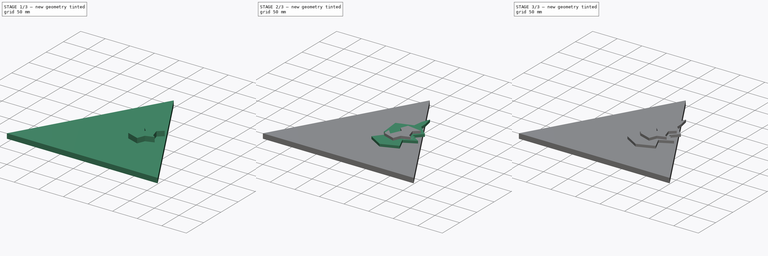
[diagram: build sequence overview — one tinted view per stage of 3, left to right]
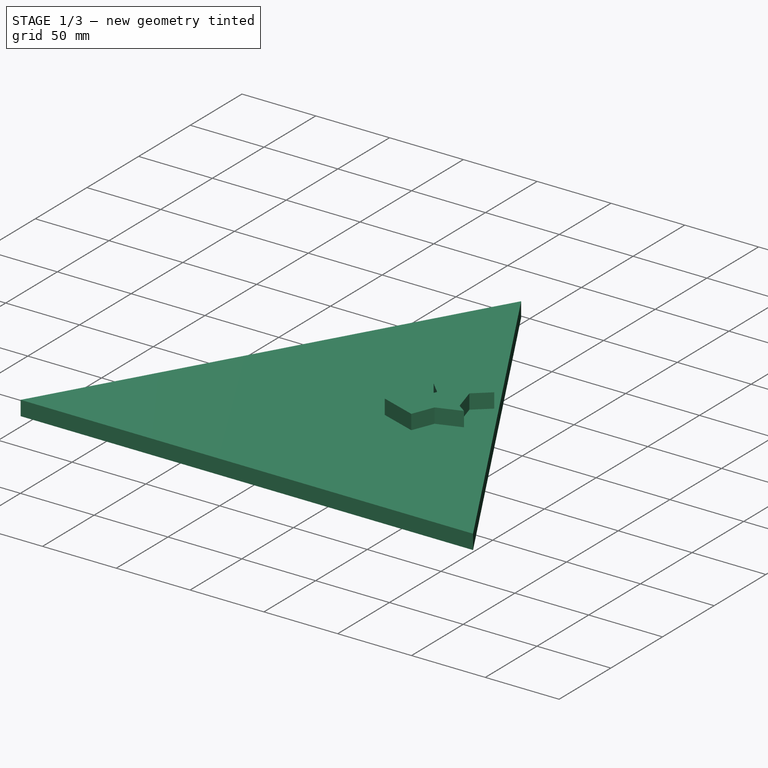
[diagram: stage 1 of 3 — iso view after this stage's code; geometry added in this stage tinted green]
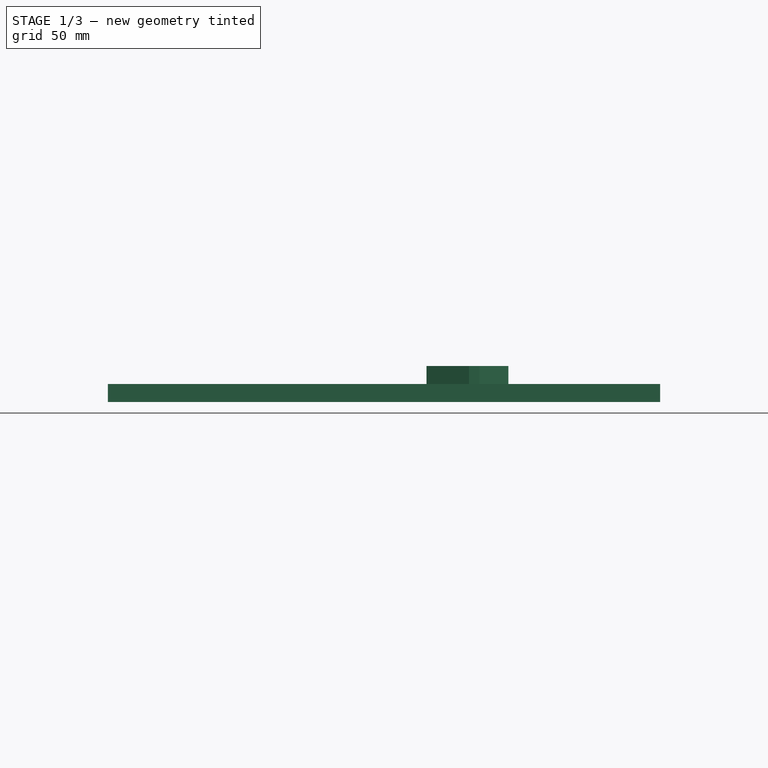
[diagram: stage 1 of 3 — front view after this stage's code; geometry added in this stage tinted green]
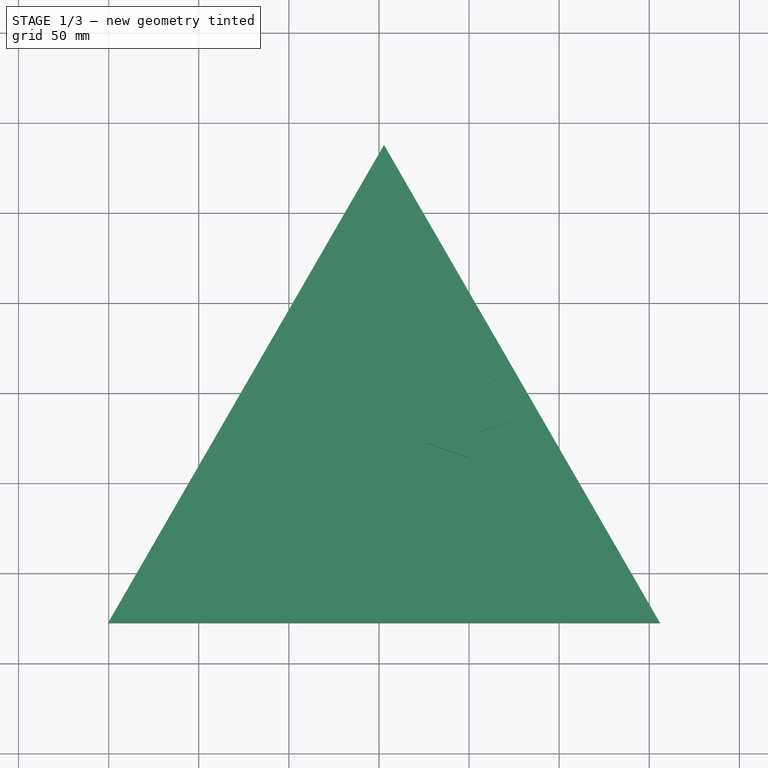
[diagram: stage 1 of 3 — top view after this stage's code; geometry added in this stage tinted green]
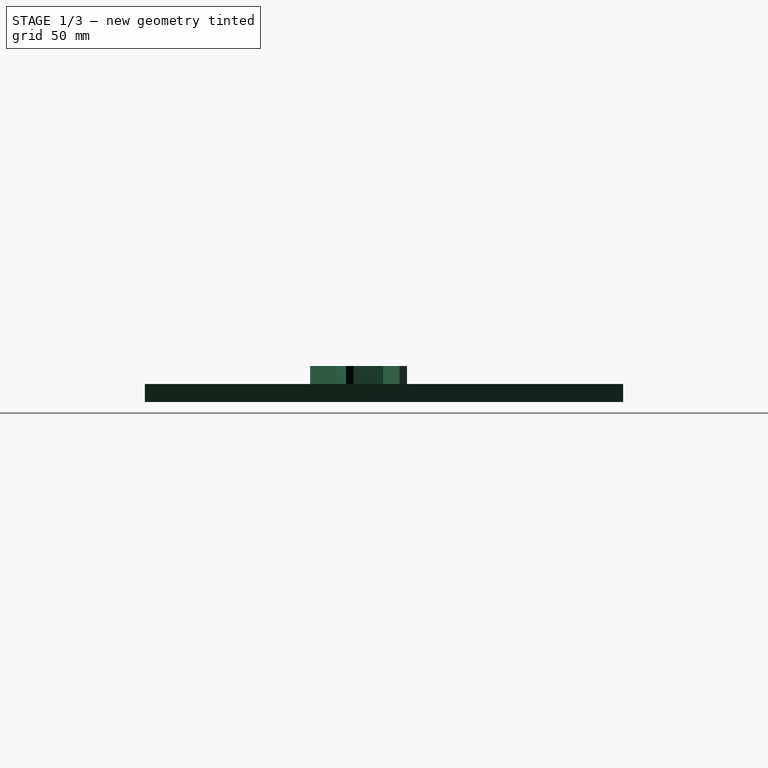
[diagram: stage 1 of 3 — right view after this stage's code; geometry added in this stage tinted green]
FCSTD DOCUMENT  (FreeCAD 0.19R)
Label: Model 06
License: All rights reserved
LicenseURL: http://en.wikipedia.org/wiki/All_rights_reserved
objects: Sketcher::SketchObject×8, PartDesign::Pad×7, PartDesign::Body×7
note: 29 computed .brp shape members not serialized (recipe doc carries the construction recipe); baked Part::Feature solids carry a one-line shape summary decoded from their .brp

FEATURE [PartDesign::Body] Body004
  Group = -> [Sketch005,Pad004]
  Origin = -> Origin004
  Placement = pos=(-34.3718,-37.401,0) rot=(0,0,1;0rad)
  Tip = -> Pad004
FEATURE [Sketcher::SketchObject] Sketch006
  FullyConstrained = false
  MapMode = 5
  Support = -> [XY_Plane005]
  sketch-geometry (12):
    g0: LineSegment StartX=15.8546 StartY=-11.8615 StartZ=0 EndX=10.9633 EndY=4.55936 EndZ=0
    g1: LineSegment StartX=10.9633 StartY=4.55936 StartZ=0 EndX=21.4447 EndY=13.6432 EndZ=0
    g2: LineSegment StartX=21.4447 StartY=13.6432 StartZ=0 EndX=-7.20441 EndY=17.8358 EndZ=0
    g3: LineSegment StartX=-7.20441 StartY=17.8358 StartZ=0 EndX=-12.7945 EndY=3.8606 EndZ=0
    g4: LineSegment StartX=-12.7945 StartY=3.8606 StartZ=0 EndX=-4.75875 EndY=-4.17513 EndZ=0
    g5: LineSegment StartX=-4.75875 StartY=-4.17513 StartZ=0 EndX=-13.8426 EndY=-24.4391 EndZ=0
    g6: LineSegment StartX=-13.8426 StartY=-24.4391 StartZ=0 EndX=-23.6252 EndY=-14.3071 EndZ=0
    g7: LineSegment StartX=-23.6252 StartY=-14.3071 StartZ=0 EndX=-23.6252 EndY=-27.9329 EndZ=0
    g8: LineSegment StartX=-23.6252 StartY=-27.9329 StartZ=0 EndX=0 EndY=-35.9686 EndZ=0
    g9: LineSegment StartX=0 StartY=-35.9686 StartZ=0 EndX=5.72263 EndY=-21.6441 EndZ=0
    g10: LineSegment StartX=5.72263 StartY=-21.6441 StartZ=0 EndX=21.7941 EndY=-16.054 EndZ=0
    g11: LineSegment StartX=21.7941 StartY=-16.054 StartZ=0 EndX=15.8546 EndY=-11.8615 EndZ=0
  constraints (14):
    c: Coincident(g0,g1)
    c: Coincident(g1,g2)
    c: Coincident(g2,g3)
    c: Coincident(g3,g4)
    c: Coincident(g4,g5)
    c: Coincident(g5,g6)
    c: Coincident(g6,g7)
    c: Vertical(g7)
    c: Coincident(g7,g8)
    c: PointOnObject(g8,g-2)
    c: Coincident(g8,g9)
    c: Coincident(g9,g10)
    c: Coincident(g10,g11)
    c: Coincident(g11,g0)
FEATURE [PartDesign::Pad] Pad005
  Direction = (1,1,1)
  Length = 10
  Length2 = 100
  Profile = -> Sketch006
  Type = 0
FEATURE [PartDesign::Body] Body005
  Group = -> [Sketch006,Pad005]
  Origin = -> Origin005
  Placement = pos=(-21.7941,-17.8358,0) rot=(0,0,1;0rad)
  Tip = -> Pad005
FEATURE [Sketcher::SketchObject] Sketch011  label="Board"
  FullyConstrained = false
  MapMode = 5
  Support = -> [XY_Plane011]
  sketch-geometry (4):
    g0: LineSegment StartX=-47.2056 StartY=137.74 StartZ=0 EndX=-200.437 EndY=-127.665 EndZ=0
    g1: LineSegment StartX=-200.437 StartY=-127.665 StartZ=0 EndX=106.026 EndY=-127.665 EndZ=0
    g2: LineSegment StartX=106.026 StartY=-127.665 StartZ=0 EndX=-47.2056 EndY=137.74 EndZ=0
    g3: Circle CenterX=-47.2056 CenterY=-39.1968 CenterZ=0 NormalX=0 NormalY=0 NormalZ=1 AngleXU=0 Radius=176.937
  constraints (8):
    c: Coincident(g0,g1)
    c: Coincident(g1,g2)
    c: Coincident(g2,g0)
    c: Equal(g0,g1)
    c: Equal(g0,g2)
    c: PointOnObject(g0,g3)
    c: PointOnObject(g1,g3)
    c: PointOnObject(g2,g3)
FEATURE [PartDesign::Pad] Pad011
  Direction = (1,1,1)
  Length = 10
  Length2 = 100
  Profile = -> Sketch011
  Reversed = true
  Type = 0
FEATURE [PartDesign::Body] Body011  label="Board Body"
  Group = -> [Sketch011,Pad011]
  Origin = -> Origin011
  Placement = pos=(200.437,127.665,0) rot=(0,0,1;0rad)
  Tip = -> Pad011
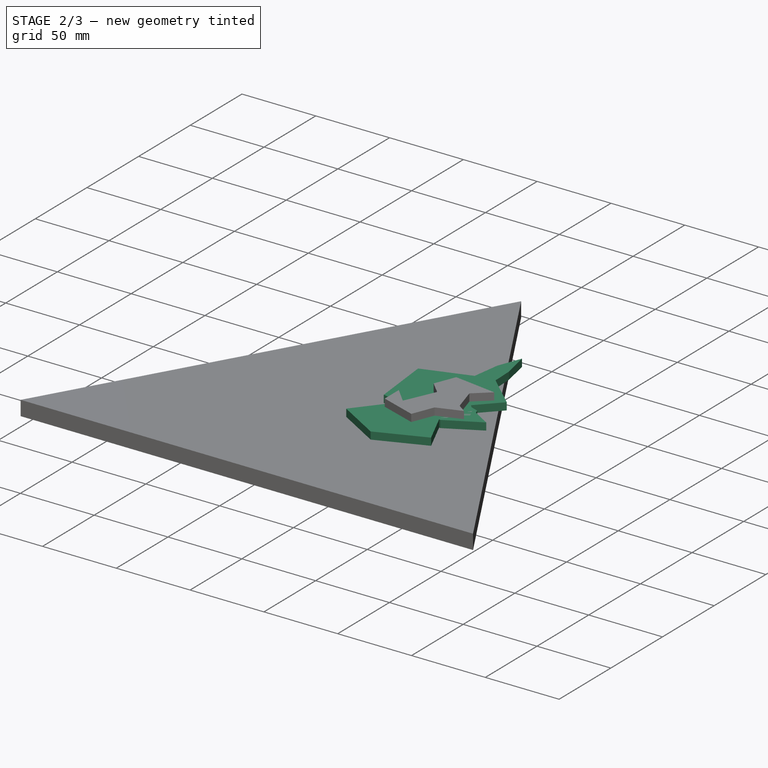
[diagram: stage 2 of 3 — iso view after this stage's code; geometry added in this stage tinted green]
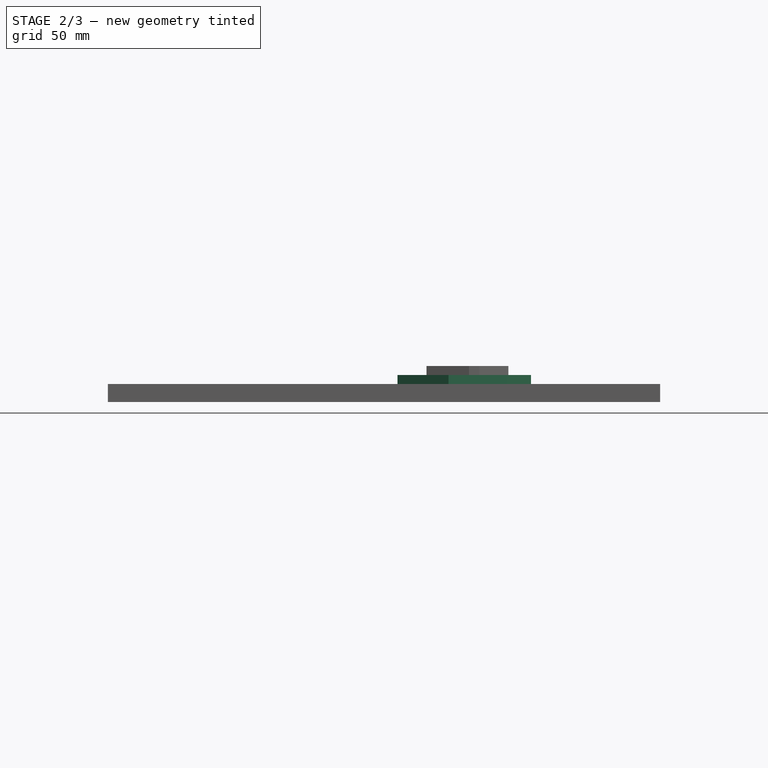
[diagram: stage 2 of 3 — front view after this stage's code; geometry added in this stage tinted green]
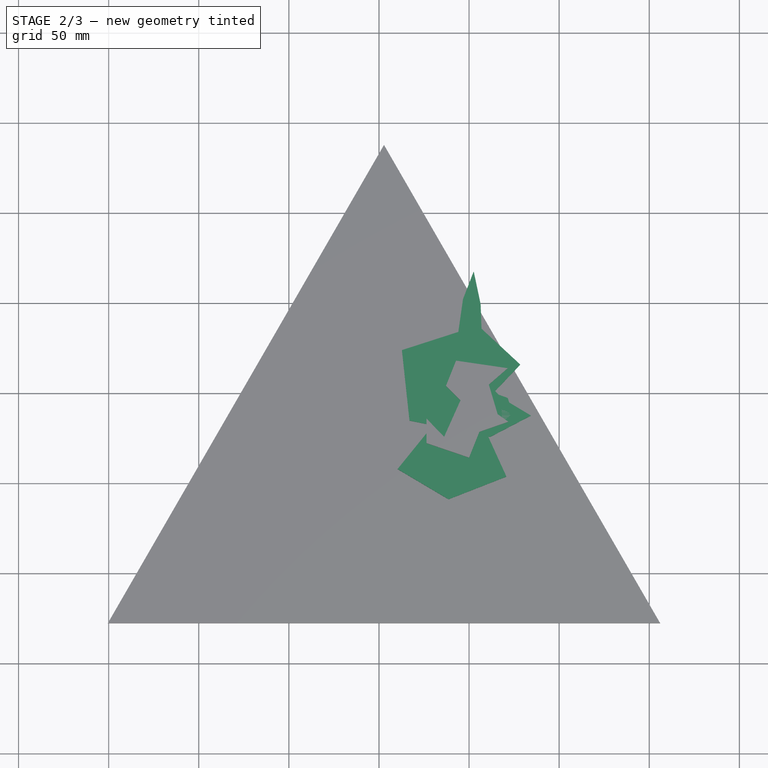
[diagram: stage 2 of 3 — top view after this stage's code; geometry added in this stage tinted green]
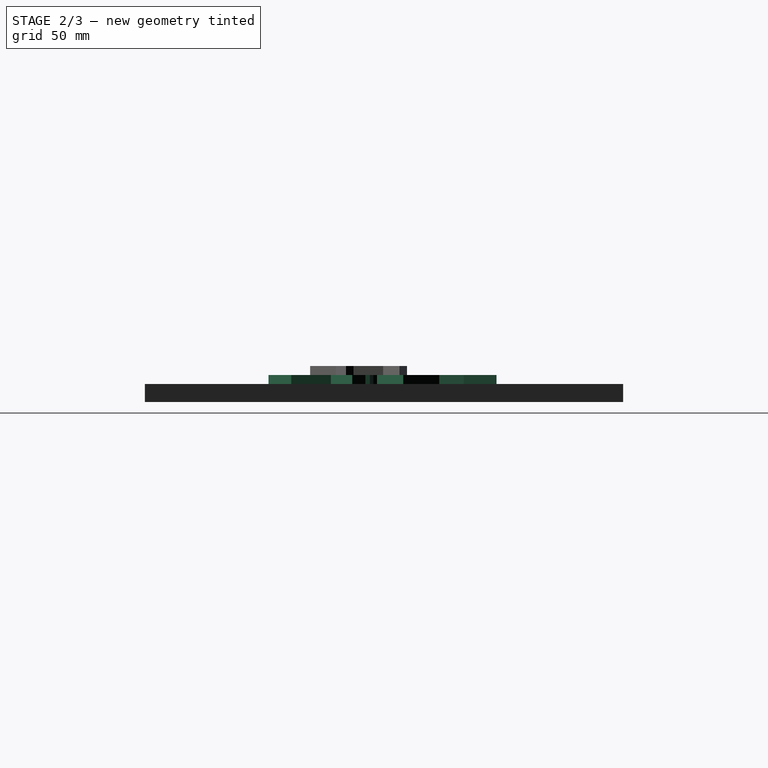
[diagram: stage 2 of 3 — right view after this stage's code; geometry added in this stage tinted green]
FEATURE [PartDesign::Body] Body001
  Group = -> [Sketch002,Pad001]
  Origin = -> Origin001
  Placement = pos=(-22.4928,-23.4258,0) rot=(0,0,1;0rad)
  Tip = -> Pad001
FEATURE [Sketcher::SketchObject] Sketch003
  FullyConstrained = false
  MapMode = 5
  Support = -> [XY_Plane002]
  sketch-geometry (12):
    g0: LineSegment StartX=13.7584 StartY=0 StartZ=0 EndX=12.0115 EndY=9.80005 EndZ=0
    g1: LineSegment StartX=12.0115 StartY=9.80005 StartZ=0 EndX=-4.40937 EndY=11.8963 EndZ=0
    g2: LineSegment StartX=-4.40937 StartY=11.8963 StartZ=0 EndX=-28.5165 EndY=11.8963 EndZ=0
    g3: LineSegment StartX=-28.5165 StartY=11.8963 StartZ=0 EndX=-29.5647 EndY=0 EndZ=0
    g4: LineSegment StartX=-29.5647 StartY=0 StartZ=0 EndX=-24.6734 EndY=-3.47636 EndZ=0
    g5: LineSegment StartX=-24.6734 StartY=-3.47636 StartZ=0 EndX=-26.7696 EndY=-16.7528 EndZ=0
    g6: LineSegment StartX=-26.7696 StartY=-16.7528 StartZ=0 EndX=-8.6019 EndY=-11.1627 EndZ=0
    g7: LineSegment StartX=-8.6019 StartY=-11.1627 StartZ=0 EndX=4.32512 EndY=-16.054 EndZ=0
    g8: LineSegment StartX=4.32512 StartY=-16.054 StartZ=0 EndX=16.5534 EndY=-8.71706 EndZ=0
    g9: LineSegment StartX=16.5534 StartY=-8.71706 StartZ=0 EndX=24.2397 EndY=-11.5121 EndZ=0
    g10: LineSegment StartX=24.2397 StartY=-11.5121 StartZ=0 EndX=21.4447 EndY=-2.77761 EndZ=0
    g11: LineSegment StartX=21.4447 StartY=-2.77761 StartZ=0 EndX=13.7584 EndY=0 EndZ=0
  constraints (15):
    c: PointOnObject(g0,g-1)
    c: Coincident(g0,g1)
    c: Coincident(g1,g2)
    c: Horizontal(g2)
    c: Coincident(g2,g3)
    c: PointOnObject(g3,g-1)
    c: Coincident(g3,g4)
    c: Coincident(g4,g5)
    c: Coincident(g5,g6)
    c: Coincident(g6,g7)
    c: Coincident(g7,g8)
    c: Coincident(g8,g9)
    c: Coincident(g9,g10)
    c: Coincident(g10,g11)
    c: Coincident(g11,g0)
FEATURE [PartDesign::Pad] Pad002
  Direction = (1,1,1)
  Length = 5
  Length2 = 100
  Profile = -> Sketch003
  Type = 0
FEATURE [PartDesign::Body] Body002
  Group = -> [Sketch003,Pad002]
  Origin = -> Origin002
  Placement = pos=(-24.2397,-11.8963,0) rot=(0,0,1;0rad)
  Tip = -> Pad002
FEATURE [Sketcher::SketchObject] Sketch004
  FullyConstrained = false
  MapMode = 5
  Support = -> [XY_Plane003]
  sketch-geometry (13):
    g0: LineSegment StartX=9.91519 StartY=-22.6922 StartZ=0 EndX=22.8422 EndY=-12.5602 EndZ=0
    g1: LineSegment StartX=22.8422 StartY=-12.5602 StartZ=0 EndX=19.3484 EndY=-4.52451 EndZ=0
    g2: LineSegment StartX=19.3484 StartY=-4.52451 StartZ=0 EndX=8.51767 EndY=8.05315 EndZ=0
    g3: LineSegment StartX=8.51767 StartY=8.05315 StartZ=0 EndX=7.12016 EndY=29.3653 EndZ=0
    g4: LineSegment StartX=7.12016 StartY=29.3653 StartZ=0 EndX=6.4214 EndY=49.2799 EndZ=0
    g5: LineSegment StartX=6.4214 StartY=49.2799 StartZ=0 EndX=2.57822 EndY=67.4476 EndZ=0
    g6: LineSegment StartX=2.57822 StartY=67.4476 StartZ=0 EndX=-3.36123 EndY=52.075 EndZ=0
    g7: LineSegment StartX=-3.36123 StartY=52.075 StartZ=0 EndX=-6.50564 EndY=30.064 EndZ=0
    g8: LineSegment StartX=-6.50564 StartY=30.064 StartZ=0 EndX=-15.9389 EndY=-12.9096 EndZ=0
    g9: LineSegment StartX=-15.9389 StartY=-12.9096 StartZ=0 EndX=-39.6967 EndY=-42.2575 EndZ=0
    g10: LineSegment StartX=-39.6967 StartY=-42.2575 StartZ=0 EndX=-11.3969 EndY=-59.0277 EndZ=0
    g11: LineSegment StartX=-11.3969 StartY=-59.0277 StartZ=0 EndX=20.746 EndY=-46.45 EndZ=0
    g12: LineSegment StartX=20.746 StartY=-46.45 StartZ=0 EndX=9.91519 EndY=-22.6922 EndZ=0
  constraints (13):
    c: Coincident(g0,g1)
    c: Coincident(g1,g2)
    c: Coincident(g2,g3)
    c: Coincident(g3,g4)
    c: Coincident(g4,g5)
    c: Coincident(g5,g6)
    c: Coincident(g6,g7)
    c: Coincident(g7,g8)
    c: Coincident(g8,g9)
    c: Coincident(g9,g10)
    c: Coincident(g10,g11)
    c: Coincident(g11,g12)
    c: Coincident(g12,g0)
FEATURE [PartDesign::Pad] Pad003
  Direction = (1,1,1)
  Length = 5
  Length2 = 100
  Profile = -> Sketch004
  Type = 0
FEATURE [PartDesign::Body] Body003
  Group = -> [Sketch004,Pad003]
  Origin = -> Origin003
  Placement = pos=(-22.8422,-67.4476,0) rot=(0,0,1;0rad)
  Tip = -> Pad003
FEATURE [Sketcher::SketchObject] Sketch005
  FullyConstrained = false
  MapMode = 5
  Support = -> [XY_Plane004]
  sketch-geometry (7):
    g0: LineSegment StartX=13.409 StartY=0 StartZ=0 EndX=28.4323 EndY=15.7395 EndZ=0
    g1: LineSegment StartX=28.4323 StartY=15.7395 StartZ=0 EndX=5.02388 EndY=37.401 EndZ=0
    g2: LineSegment StartX=5.02388 StartY=37.401 StartZ=0 EndX=-37.251 EndY=23.7752 EndZ=0
    g3: LineSegment StartX=-37.251 StartY=23.7752 StartZ=0 EndX=-33.0585 EndY=-15.3553 EndZ=0
    g4: LineSegment StartX=-33.0585 StartY=-15.3553 StartZ=0 EndX=11.6621 EndY=-24.4391 EndZ=0
    g5: LineSegment StartX=11.6621 StartY=-24.4391 StartZ=0 EndX=34.3717 EndY=-12.5602 EndZ=0
    g6: LineSegment StartX=34.3717 StartY=-12.5602 StartZ=0 EndX=13.409 EndY=0 EndZ=0
  constraints (8):
    c: PointOnObject(g0,g-1)
    c: Coincident(g0,g1)
    c: Coincident(g1,g2)
    c: Coincident(g2,g3)
    c: Coincident(g3,g4)
    c: Coincident(g4,g5)
    c: Coincident(g5,g6)
    c: Coincident(g6,g0)
FEATURE [PartDesign::Pad] Pad004
  Direction = (1,1,1)
  Length = 5
  Length2 = 100
  Profile = -> Sketch005
  Type = 0
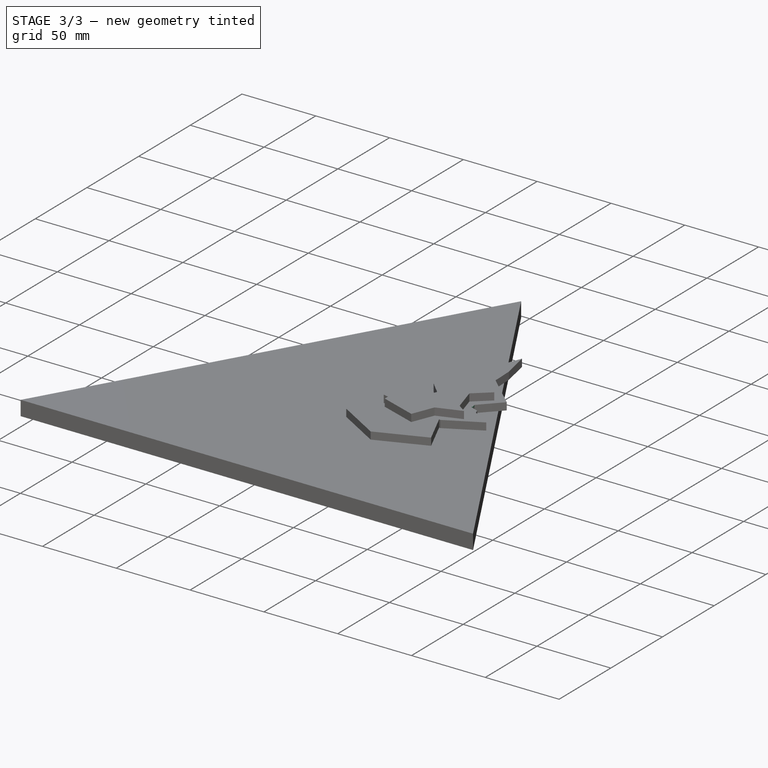
[diagram: stage 3 of 3 — iso view after this stage's code; geometry added in this stage tinted green]
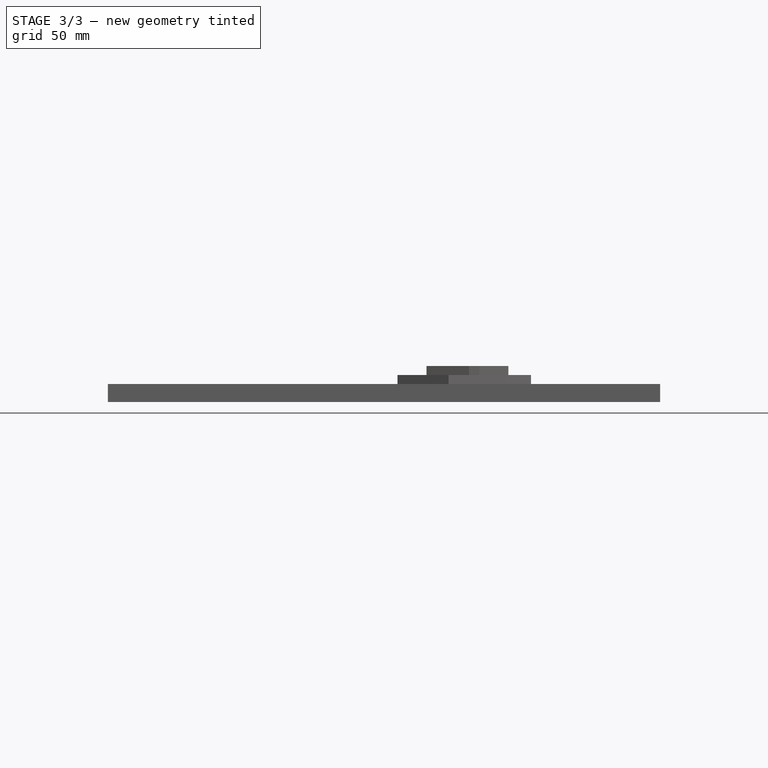
[diagram: stage 3 of 3 — front view after this stage's code; geometry added in this stage tinted green]
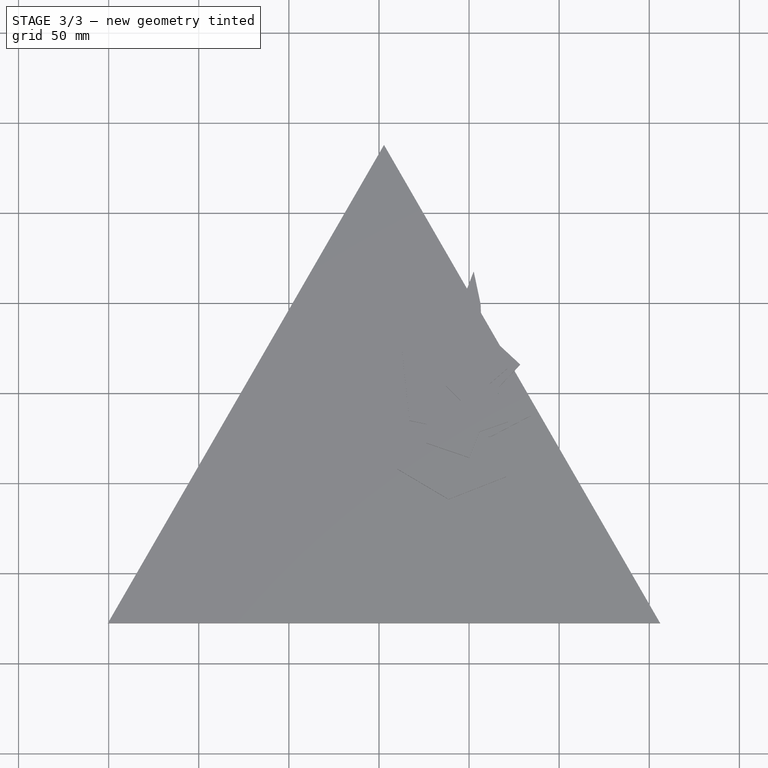
[diagram: stage 3 of 3 — top view after this stage's code; geometry added in this stage tinted green]
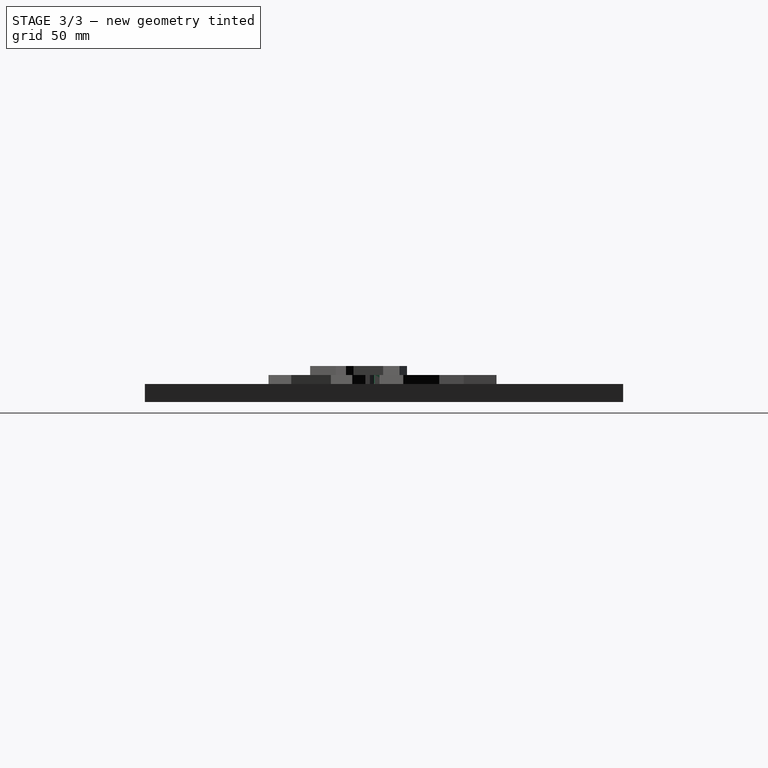
[diagram: stage 3 of 3 — right view after this stage's code; geometry added in this stage tinted green]
FEATURE [Sketcher::SketchObject] Sketch
  FullyConstrained = false
  MapMode = 5
  Support = -> [XY_Plane]
  sketch-geometry (8):
    g0: LineSegment StartX=16.4078 StartY=0 StartZ=0 EndX=14.21 EndY=9.29201 EndZ=0
    g1: LineSegment StartX=14.21 StartY=9.29201 StartZ=0 EndX=7.45958 EndY=7.40817 EndZ=0
    g2: LineSegment StartX=7.45958 StartY=7.40817 StartZ=0 EndX=-1.80261 EndY=16.6704 EndZ=0
    g3: LineSegment StartX=-1.80261 StartY=16.6704 StartZ=0 EndX=-17.3443 EndY=4.26845 EndZ=0
    g4: LineSegment StartX=-17.3443 StartY=4.26845 StartZ=0 EndX=-13.5766 EndY=-9.86031 EndZ=0
    g5: LineSegment StartX=-13.5766 StartY=-9.86031 StartZ=0 EndX=5.10478 EndY=-3.26689 EndZ=0
    g6: LineSegment StartX=5.10478 StartY=-3.26689 StartZ=0 EndX=11.8552 EndY=-6.09264 EndZ=0
    g7: LineSegment StartX=11.8552 StartY=-6.09264 StartZ=0 EndX=16.4078 EndY=0 EndZ=0
  constraints (9):
    c: PointOnObject(g0,g-1)
    c: Coincident(g0,g1)
    c: Coincident(g1,g2)
    c: Coincident(g2,g3)
    c: Coincident(g3,g4)
    c: Coincident(g4,g5)
    c: Coincident(g5,g6)
    c: Coincident(g6,g7)
    c: Coincident(g7,g0)
FEATURE [PartDesign::Pad] Pad
  Direction = (1,1,1)
  Length = 5
  Length2 = 100
  Profile = -> Sketch
  Type = 0
FEATURE [Sketcher::SketchObject] Sketch001
  FullyConstrained = true
  MapMode = 5
  Support = -> [XY_Plane]
FEATURE [PartDesign::Body] Body
  Group = -> [Sketch,Pad,Sketch001]
  Origin = -> Origin
  Placement = pos=(-16.4078,-16.6704,0) rot=(0,0,1;0rad)
  Tip = -> Pad
FEATURE [Sketcher::SketchObject] Sketch002
  FullyConstrained = false
  MapMode = 5
  Support = -> [XY_Plane001]
  sketch-geometry (10):
    g0: LineSegment StartX=0 StartY=23.4258 StartZ=0 EndX=7.12016 EndY=10.4988 EndZ=0
    g1: LineSegment StartX=7.12016 StartY=10.4988 StartZ=0 EndX=22.4928 EndY=9.45067 EndZ=0
    g2: LineSegment StartX=22.4928 StartY=9.45067 StartZ=0 EndX=8.16829 EndY=-2.07885 EndZ=0
    g3: LineSegment StartX=8.16829 StartY=-2.07885 StartZ=0 EndX=14.1077 EndY=-16.7528 EndZ=0
    g4: LineSegment StartX=14.1077 StartY=-16.7528 StartZ=0 EndX=0 EndY=-10.1146 EndZ=0
    g5: LineSegment StartX=0 StartY=-10.1146 StartZ=0 EndX=-11.0476 EndY=-18.1503 EndZ=0
    g6: LineSegment StartX=-11.0476 StartY=-18.1503 StartZ=0 EndX=-7.90316 EndY=0 EndZ=0
    g7: LineSegment StartX=-7.90316 StartY=0 StartZ=0 EndX=-19.0833 EndY=10.4988 EndZ=0
    g8: LineSegment StartX=-19.0833 StartY=10.4988 StartZ=0 EndX=-6.50564 EndY=10.4988 EndZ=0
    g9: LineSegment StartX=-6.50564 StartY=10.4988 StartZ=0 EndX=0 EndY=23.4258 EndZ=0
  constraints (14):
    c: PointOnObject(g0,g-2)
    c: Coincident(g0,g1)
    c: Coincident(g1,g2)
    c: Coincident(g2,g3)
    c: Coincident(g3,g4)
    c: PointOnObject(g4,g-2)
    c: Coincident(g4,g5)
    c: Coincident(g5,g6)
    c: PointOnObject(g6,g-1)
    c: Coincident(g6,g7)
    c: Coincident(g7,g8)
    c: Horizontal(g8)
    c: Coincident(g8,g9)
    c: Coincident(g9,g0)
FEATURE [PartDesign::Pad] Pad001
  Direction = (1,1,1)
  Length = 5
  Length2 = 100
  Profile = -> Sketch002
  Type = 0
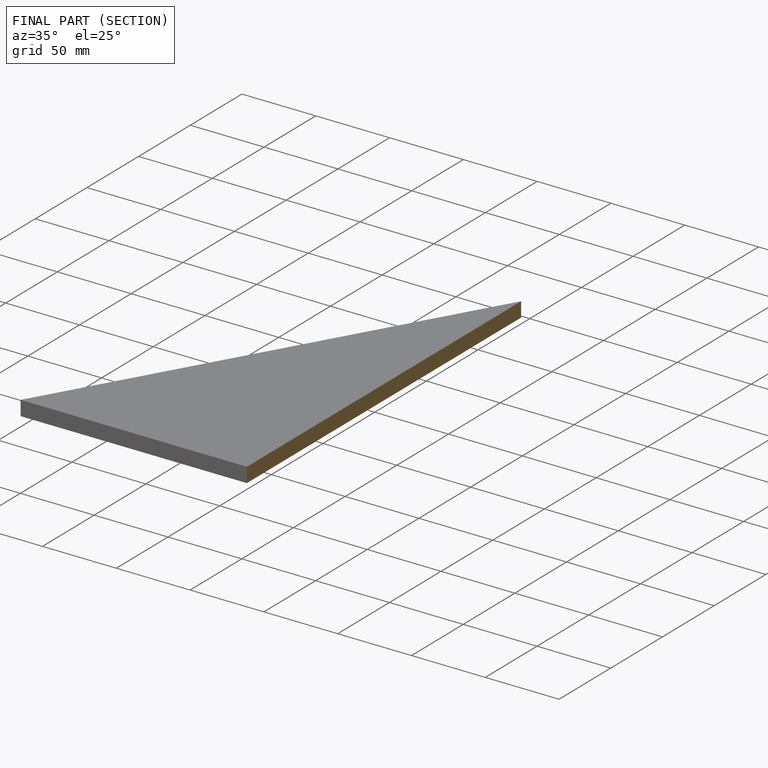
[diagram: finished part — half-section view (interior)]
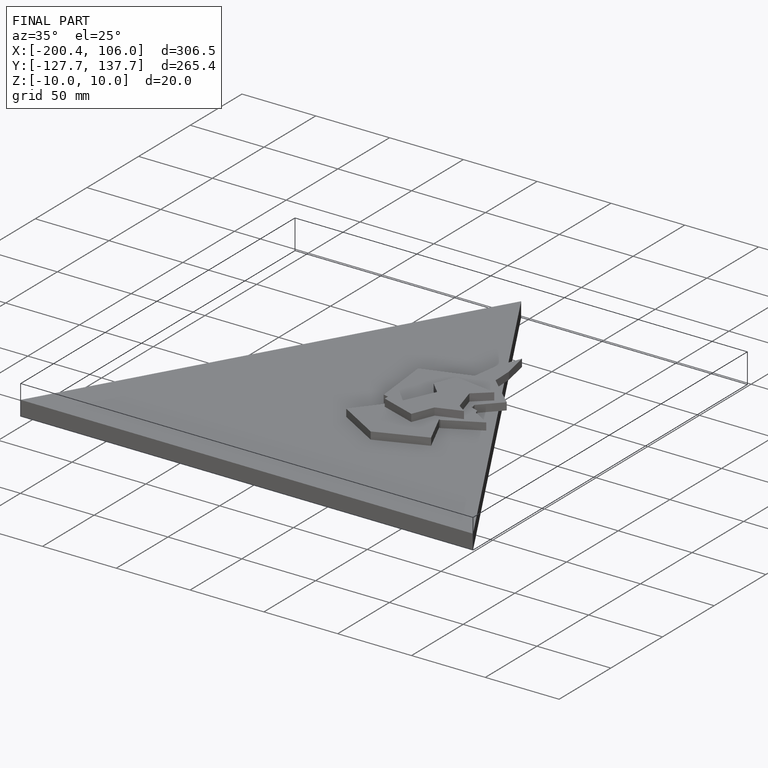
[diagram: finished part — iso view with bounding-box wireframe]
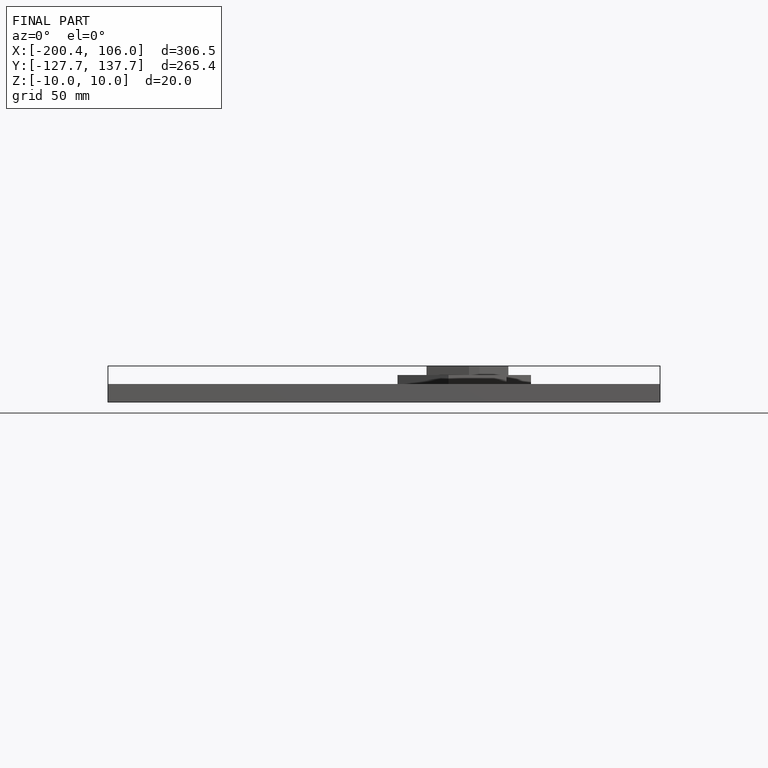
[diagram: finished part — front view with bounding-box wireframe]
